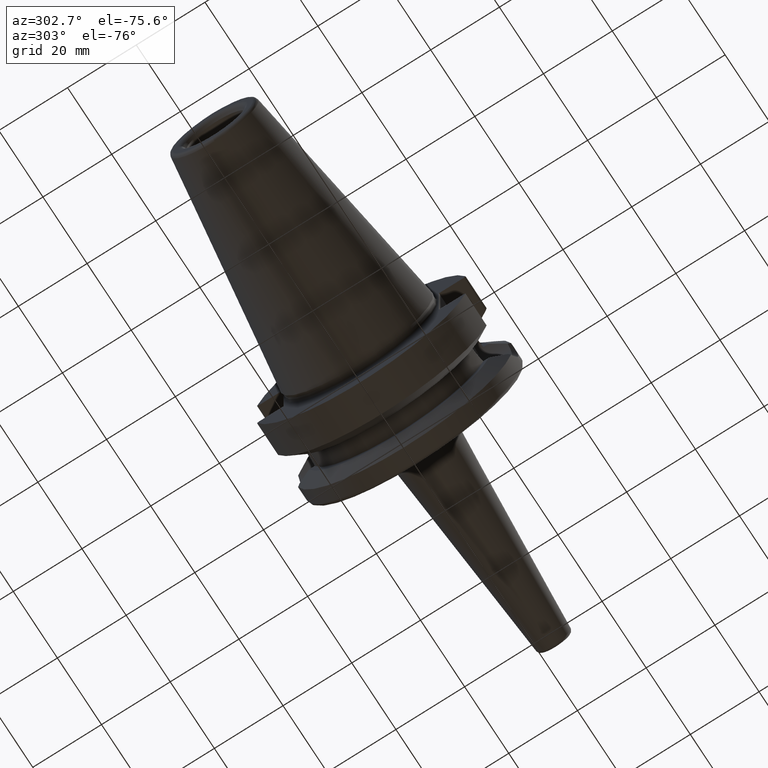
[diagram: clean part render]
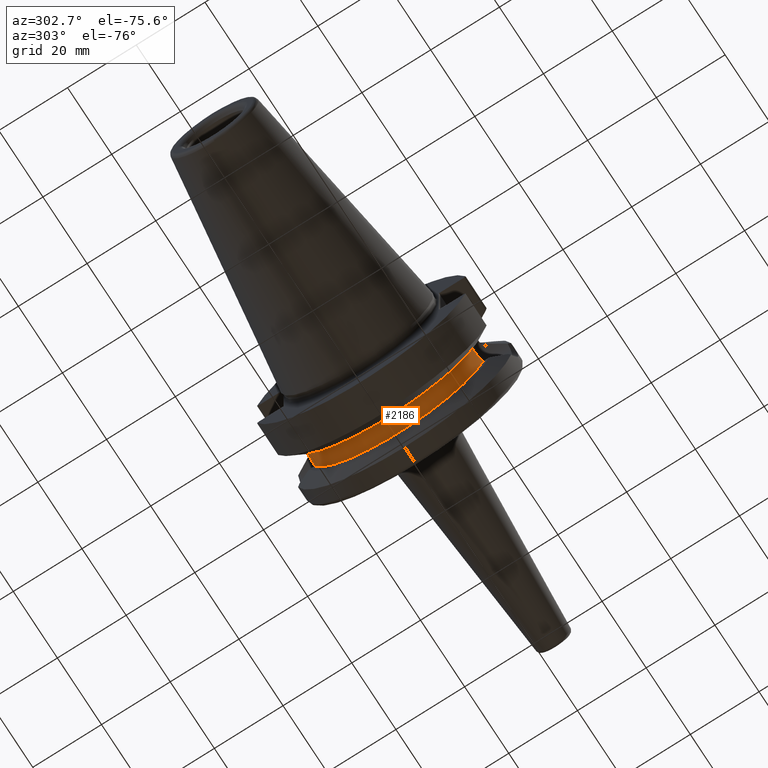
[diagram: same view with one face highlighted and labeled with its STEP entity id]
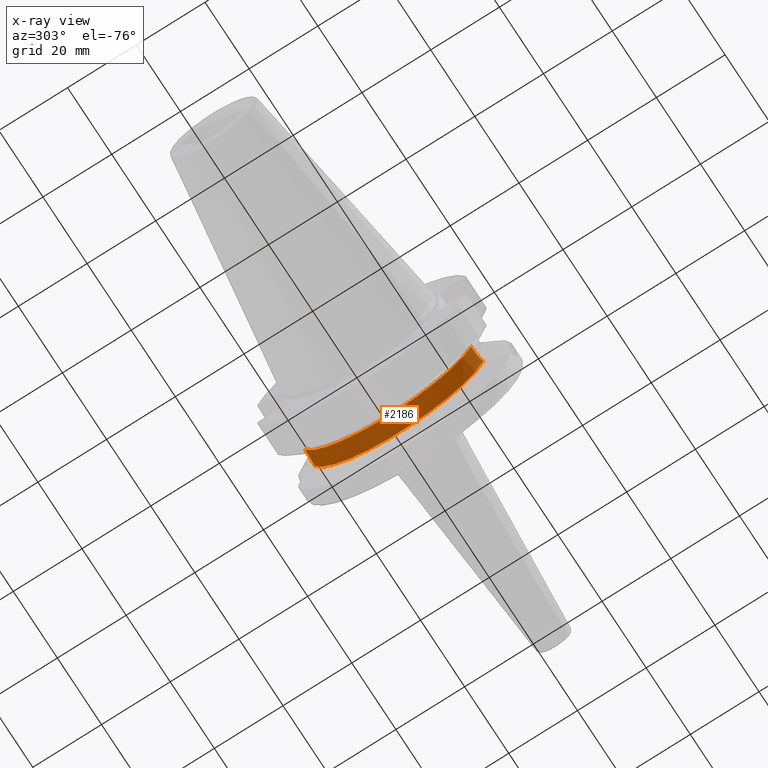
[diagram: x-ray of the same camera — body ghosted, the highlighted face saturated]
A machine part, auxiliary view. The second image highlights one B-rep face of the part: STEP entity #2186.
The next image is the same camera in x-ray: the body ghosted, the highlighted face saturated — about 0% of this face is hidden behind the body in this view.
In plain terms, the highlighted cylindrical surface (partial cylindrical patch) has radius 25.5 mm, axis along (-1, 0, 0).
Its self-contained STEP definition (entity closure, byte-faithful):
#612=CARTESIAN_POINT('',(1.91E1,-2.454933807662E1,-6.897825744392E0));
#613=CARTESIAN_POINT('',(1.867641699679E1,-2.447773250184E1,-7.152669738494E0));
#614=CARTESIAN_POINT('',(1.778882477777E1,-2.434922094846E1,-7.580139647955E0));
#615=CARTESIAN_POINT('',(1.638361911079E1,-2.422446852783E1,-7.965254988483E0));
#616=CARTESIAN_POINT('',(1.542599992151E1,-2.419602240039E1,-8.05E0));
#617=CARTESIAN_POINT('',(1.495E1,-2.419602240039E1,-8.05E0));
#648=DIRECTION('',(-1.E0,0.E0,0.E0));
#649=VECTOR('',#648,8.5E-1);
#650=CARTESIAN_POINT('',(1.495E1,-2.419602240039E1,-8.05E0));
#651=LINE('',#650,#649);
#652=CARTESIAN_POINT('',(1.91E1,0.E0,0.E0));
#653=DIRECTION('',(1.E0,0.E0,0.E0));
#654=DIRECTION('',(0.E0,-9.627191402595E-1,-2.705029703683E-1));
#655=AXIS2_PLACEMENT_3D('',#652,#653,#654);
#657=DIRECTION('',(-1.E0,0.E0,0.E0));
#658=VECTOR('',#657,8.5E-1);
#659=CARTESIAN_POINT('',(1.495E1,2.419602240039E1,-8.05E0));
#660=LINE('',#659,#658);
#661=CARTESIAN_POINT('',(1.41E1,0.E0,0.E0));
#662=DIRECTION('',(-1.E0,0.E0,0.E0));
#663=DIRECTION('',(0.E0,9.488636235446E-1,-3.156862745098E-1));
#664=AXIS2_PLACEMENT_3D('',#661,#662,#663);
#710=CARTESIAN_POINT('',(1.495E1,2.419602240039E1,-8.05E0));
#711=CARTESIAN_POINT('',(1.545003879218E1,2.419602240039E1,-8.05E0));
#712=CARTESIAN_POINT('',(1.643993891662E1,2.422710976470E1,-7.957502015576E0));
#713=CARTESIAN_POINT('',(1.786319727429E1,2.435842535411E1,-7.550793992203E0));
#714=CARTESIAN_POINT('',(1.870557473440E1,2.448266153947E1,-7.135127310553E0));
#715=CARTESIAN_POINT('',(1.91E1,2.454933807662E1,-6.897825744392E0));
#1041=CARTESIAN_POINT('',(1.41E1,2.419602240039E1,-8.05E0));
#1043=VERTEX_POINT('',#1041);
#1044=CARTESIAN_POINT('',(1.91E1,2.454933807662E1,-6.897825744392E0));
#1046=VERTEX_POINT('',#1044);
#1056=CARTESIAN_POINT('',(1.495E1,2.419602240039E1,-8.05E0));
#1057=VERTEX_POINT('',#1056);
#1182=CARTESIAN_POINT('',(1.41E1,-2.419602240039E1,-8.05E0));
#1183=VERTEX_POINT('',#1182);
#1189=CARTESIAN_POINT('',(1.91E1,-2.454933807662E1,-6.897825744392E0));
#1190=VERTEX_POINT('',#1189);
#1196=CARTESIAN_POINT('',(1.495E1,-2.419602240039E1,-8.05E0));
#1198=VERTEX_POINT('',#1196);
#2169=CARTESIAN_POINT('',(0.E0,0.E0,0.E0));
#2170=DIRECTION('',(-1.E0,0.E0,0.E0));
#2171=DIRECTION('',(0.E0,0.E0,-1.E0));
#2172=AXIS2_PLACEMENT_3D('',#2169,#2170,#2171);
#2173=CYLINDRICAL_SURFACE('',#2172,2.55E1);
#2174=ORIENTED_EDGE('',*,*,#2135,.F.);
#2175=ORIENTED_EDGE('',*,*,#2124,.F.);
#2177=ORIENTED_EDGE('',*,*,#2176,.T.);
#2179=ORIENTED_EDGE('',*,*,#2178,.F.);
#2181=ORIENTED_EDGE('',*,*,#2180,.T.);
#2183=ORIENTED_EDGE('',*,*,#2182,.T.);
#2184=EDGE_LOOP('',(#2174,#2175,#2177,#2179,#2181,#2183));
#2185=FACE_OUTER_BOUND('',#2184,.F.);
#2186=ADVANCED_FACE('',(#2185),#2173,.T.);
#618=B_SPLINE_CURVE_WITH_KNOTS('',3,(#612,#613,#614,#615,#616,#617),
.UNSPECIFIED.,.F.,.F.,(4,1,1,4),(0.E0,3.333333333333E-1,6.666666666667E-1,1.E0),
.UNSPECIFIED.);
#656=CIRCLE('',#655,2.55E1);
#665=CIRCLE('',#664,2.55E1);
#716=B_SPLINE_CURVE_WITH_KNOTS('',3,(#710,#711,#712,#713,#714,#715),
.UNSPECIFIED.,.F.,.F.,(4,1,1,4),(0.E0,3.333333333333E-1,6.666666666667E-1,1.E0),
.UNSPECIFIED.);
#2124=EDGE_CURVE('',#1190,#1198,#618,.T.);
#2135=EDGE_CURVE('',#1198,#1183,#651,.T.);
#2176=EDGE_CURVE('',#1190,#1046,#656,.T.);
#2178=EDGE_CURVE('',#1057,#1046,#716,.T.);
#2180=EDGE_CURVE('',#1057,#1043,#660,.T.);
#2182=EDGE_CURVE('',#1043,#1183,#665,.T.);